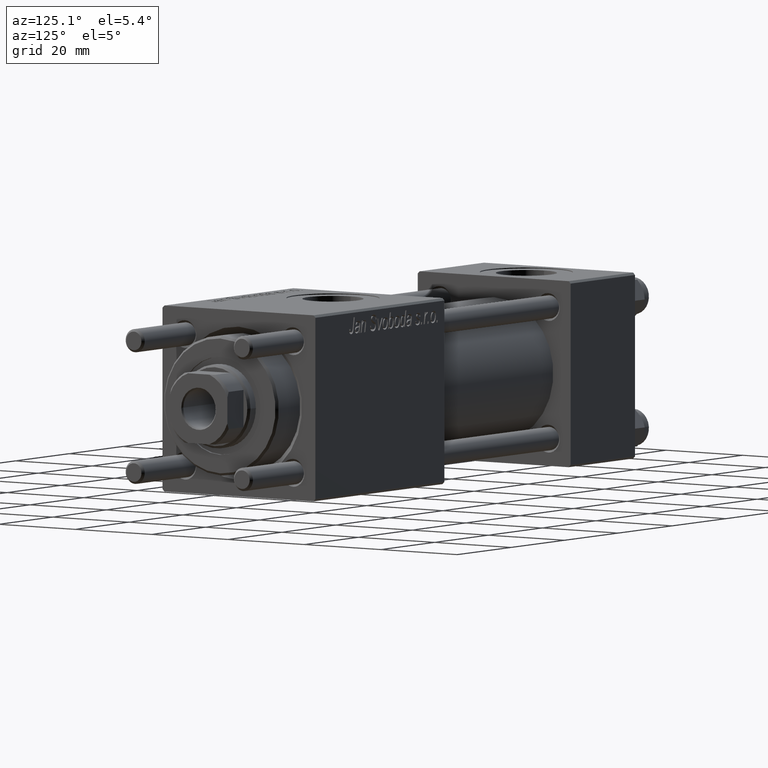
[diagram: clean part render]
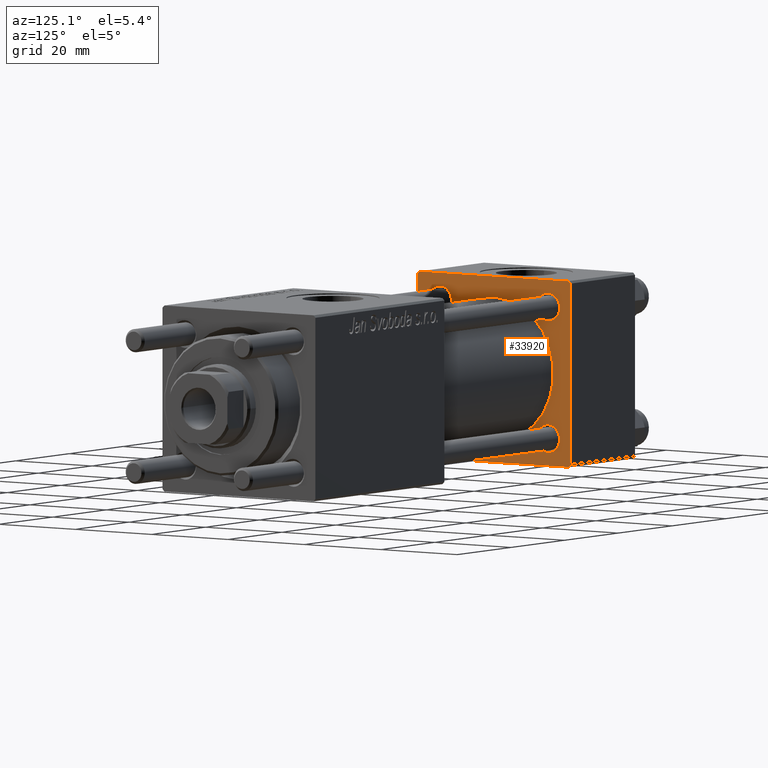
[diagram: same view with one face highlighted and labeled with its STEP entity id]
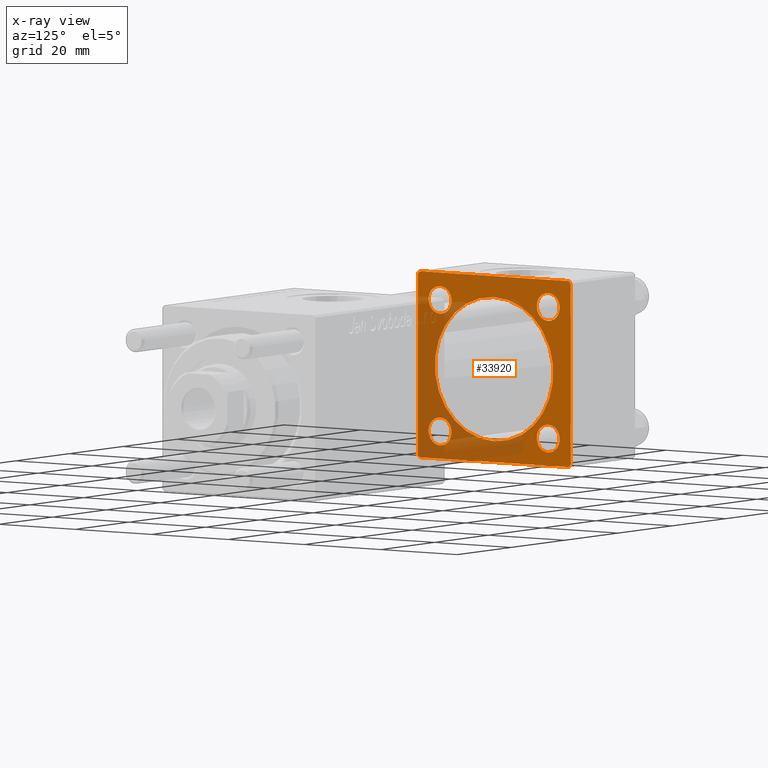
[diagram: x-ray of the same camera — body ghosted, the highlighted face saturated]
A machine part, auxiliary view. The second image highlights one B-rep face of the part: STEP entity #33920.
The next image is the same camera in x-ray: the body ghosted, the highlighted face saturated — about 40% of this face is hidden behind the body in this view.
In plain terms, the highlighted planar face has unit normal (-1, 0, 0).
Its self-contained STEP definition (entity closure, byte-faithful):
#233 = VERTEX_POINT ( 'NONE', #24056 ) ;
#1494 = CARTESIAN_POINT ( 'NONE',  ( 24.00000000000000000, -2.602085213965210642E-15, 15.50000000000000000 ) ) ;
#1534 = VERTEX_POINT ( 'NONE', #2154 ) ;
#2154 = CARTESIAN_POINT ( 'NONE',  ( 24.00000000000000000, -7.038826752868131828E-16, -15.50000000000000000 ) ) ;
#2370 = DIRECTION ( 'NONE',  ( -0.000000000000000000, -0.7071067811865500152, -0.7071067811865451302 ) ) ;
#2383 = CIRCLE ( 'NONE', #52716, 2.999999999999976463 ) ;
#2737 = CARTESIAN_POINT ( 'NONE',  ( 24.00000000000000000, 0.000000000000000000, 0.000000000000000000 ) ) ;
#2744 = EDGE_CURVE ( 'NONE', #19388, #51508, #25849, .T. ) ;
#3230 = DIRECTION ( 'NONE',  ( 0.000000000000000000, 0.000000000000000000, 1.000000000000000000 ) ) ;
#3379 = ORIENTED_EDGE ( 'NONE', *, *, #15808, .T. ) ;
#4532 = VERTEX_POINT ( 'NONE', #42231 ) ;
#4637 = EDGE_LOOP ( 'NONE', ( #36910, #37021 ) ) ;
#4899 = AXIS2_PLACEMENT_3D ( 'NONE', #2737, #15920, #6764 ) ;
#5357 = DIRECTION ( 'NONE',  ( 0.000000000000000000, 0.000000000000000000, -1.000000000000000000 ) ) ;
#5815 = EDGE_LOOP ( 'NONE', ( #31901, #3379 ) ) ;
#5979 = DIRECTION ( 'NONE',  ( 0.000000000000000000, 8.673617379884036705E-17, -1.000000000000000000 ) ) ;
#6232 = ORIENTED_EDGE ( 'NONE', *, *, #51312, .T. ) ;
#6656 = LINE ( 'NONE', #24146, #41642 ) ;
#6764 = DIRECTION ( 'NONE',  ( -0.000000000000000000, 0.000000000000000000, 1.000000000000000000 ) ) ;
#7007 = VECTOR ( 'NONE', #14086, 1000.000000000000000 ) ;
#7047 = FACE_BOUND ( 'NONE', #4637, .T. ) ;
#7319 = VERTEX_POINT ( 'NONE', #1494 ) ;
#7712 = EDGE_CURVE ( 'NONE', #37281, #233, #24611, .T. ) ;
#8043 = CARTESIAN_POINT ( 'NONE',  ( 24.00000000000000000, -2.602085213965210642E-15, 0.000000000000000000 ) ) ;
#8228 = ORIENTED_EDGE ( 'NONE', *, *, #30160, .T. ) ;
#8541 = LINE ( 'NONE', #51248, #18941 ) ;
#9007 = DIRECTION ( 'NONE',  ( -1.000000000000000000, -0.000000000000000000, -0.000000000000000000 ) ) ;
#9189 = VERTEX_POINT ( 'NONE', #27087 ) ;
#9199 = EDGE_CURVE ( 'NONE', #29111, #17846, #52618, .T. ) ;
#9414 = EDGE_CURVE ( 'NONE', #17846, #29111, #18726, .T. ) ;
#9806 = CARTESIAN_POINT ( 'NONE',  ( 24.00000000000000000, -14.14999999999999503, 14.15000000000000391 ) ) ;
#10552 = CARTESIAN_POINT ( 'NONE',  ( 24.00000000000000000, -20.00000000000000355, 19.99999999999998934 ) ) ;
#10929 = VERTEX_POINT ( 'NONE', #11508 ) ;
#11231 = EDGE_LOOP ( 'NONE', ( #8228, #13815 ) ) ;
#11277 = CARTESIAN_POINT ( 'NONE',  ( 24.00000000000000000, -19.49999999999999289, 19.99999999999998934 ) ) ;
#11508 = CARTESIAN_POINT ( 'NONE',  ( 24.00000000000000000, -14.14999999999999503, 17.15000000000000924 ) ) ;
#11946 = CARTESIAN_POINT ( 'NONE',  ( 24.00000000000000000, 20.00000000000000000, -19.50000000000002132 ) ) ;
#12466 = DIRECTION ( 'NONE',  ( -1.000000000000000000, -0.000000000000000000, -0.000000000000000000 ) ) ;
#12751 = DIRECTION ( 'NONE',  ( 0.000000000000000000, 0.000000000000000000, 1.000000000000000000 ) ) ;
#12823 = ORIENTED_EDGE ( 'NONE', *, *, #38695, .T. ) ;
#13508 = CARTESIAN_POINT ( 'NONE',  ( 24.00000000000000000, -14.14999999999999503, -14.15000000000000391 ) ) ;
#13609 = ORIENTED_EDGE ( 'NONE', *, *, #44180, .T. ) ;
#13815 = ORIENTED_EDGE ( 'NONE', *, *, #2744, .T. ) ;
#14059 = DIRECTION ( 'NONE',  ( -1.000000000000000000, -0.000000000000000000, -0.000000000000000000 ) ) ;
#14086 = DIRECTION ( 'NONE',  ( -0.000000000000000000, 0.7071067811865524577, 0.7071067811865426878 ) ) ;
#14196 = DIRECTION ( 'NONE',  ( 0.000000000000000000, 0.000000000000000000, 1.000000000000000000 ) ) ;
#15421 = LINE ( 'NONE', #10552, #32743 ) ;
#15762 = CARTESIAN_POINT ( 'NONE',  ( 24.00000000000000000, 14.14999999999999858, 11.15000000000002700 ) ) ;
#15808 = EDGE_CURVE ( 'NONE', #10929, #22939, #51746, .T. ) ;
#15920 = DIRECTION ( 'NONE',  ( -1.000000000000000000, 0.000000000000000000, -0.000000000000000000 ) ) ;
#16004 = DIRECTION ( 'NONE',  ( 0.000000000000000000, -1.000000000000000000, 1.734723475976807094E-16 ) ) ;
#16199 = FACE_BOUND ( 'NONE', #25839, .T. ) ;
#16241 = CARTESIAN_POINT ( 'NONE',  ( 24.00000000000000000, -14.14999999999999503, 14.15000000000000391 ) ) ;
#16519 = DIRECTION ( 'NONE',  ( 0.000000000000000000, 0.000000000000000000, 1.000000000000000000 ) ) ;
#16554 = DIRECTION ( 'NONE',  ( 0.000000000000000000, 0.7071067811865401342, -0.7071067811865549002 ) ) ;
#17176 = VERTEX_POINT ( 'NONE', #48382 ) ;
#17214 = DIRECTION ( 'NONE',  ( 0.000000000000000000, 0.000000000000000000, 1.000000000000000000 ) ) ;
#17377 = ORIENTED_EDGE ( 'NONE', *, *, #37993, .F. ) ;
#17846 = VERTEX_POINT ( 'NONE', #39473 ) ;
#18538 = VERTEX_POINT ( 'NONE', #11277 ) ;
#18726 = CIRCLE ( 'NONE', #40695, 3.000000000000004441 ) ;
#18749 = DIRECTION ( 'NONE',  ( 1.000000000000000000, 0.000000000000000000, 0.000000000000000000 ) ) ;
#18941 = VECTOR ( 'NONE', #16554, 1000.000000000000000 ) ;
#19382 = FACE_BOUND ( 'NONE', #27344, .T. ) ;
#19388 = VERTEX_POINT ( 'NONE', #35960 ) ;
#20765 = EDGE_CURVE ( 'NONE', #4532, #17176, #32684, .T. ) ;
#21025 = ORIENTED_EDGE ( 'NONE', *, *, #7712, .F. ) ;
#21223 = DIRECTION ( 'NONE',  ( 1.000000000000000000, 0.000000000000000000, 0.000000000000000000 ) ) ;
#21371 = AXIS2_PLACEMENT_3D ( 'NONE', #52032, #12466, #12751 ) ;
#22668 = DIRECTION ( 'NONE',  ( 0.000000000000000000, 0.000000000000000000, 1.000000000000000000 ) ) ;
#22874 = VERTEX_POINT ( 'NONE', #33112 ) ;
#22939 = VERTEX_POINT ( 'NONE', #27655 ) ;
#23984 = DIRECTION ( 'NONE',  ( 0.000000000000000000, -1.000000000000000000, -2.602085213965210149E-16 ) ) ;
#24056 = CARTESIAN_POINT ( 'NONE',  ( 24.00000000000000000, -19.50000000000000711, -20.00000000000000000 ) ) ;
#24146 = CARTESIAN_POINT ( 'NONE',  ( 24.00000000000000000, -20.00000000000000355, 19.49999999999998224 ) ) ;
#24251 = AXIS2_PLACEMENT_3D ( 'NONE', #9806, #31876, #45046 ) ;
#24529 = FACE_BOUND ( 'NONE', #11231, .T. ) ;
#24611 = LINE ( 'NONE', #55282, #31495 ) ;
#24716 = CARTESIAN_POINT ( 'NONE',  ( 24.00000000000000000, -14.14999999999999503, -11.15000000000000036 ) ) ;
#25003 = CARTESIAN_POINT ( 'NONE',  ( 24.00000000000000000, 14.14999999999999858, -14.15000000000000036 ) ) ;
#25355 = AXIS2_PLACEMENT_3D ( 'NONE', #35936, #18749, #53433 ) ;
#25839 = EDGE_LOOP ( 'NONE', ( #44203, #17377 ) ) ;
#25849 = CIRCLE ( 'NONE', #45075, 2.999999999999973355 ) ;
#26285 = LINE ( 'NONE', #40301, #53484 ) ;
#27087 = CARTESIAN_POINT ( 'NONE',  ( 24.00000000000000000, -20.00000000000000000, -19.49999999999999645 ) ) ;
#27192 = CIRCLE ( 'NONE', #25355, 15.50000000000000000 ) ;
#27344 = EDGE_LOOP ( 'NONE', ( #12823, #49200 ) ) ;
#27638 = DIRECTION ( 'NONE',  ( -1.000000000000000000, -0.000000000000000000, -0.000000000000000000 ) ) ;
#27655 = CARTESIAN_POINT ( 'NONE',  ( 24.00000000000000000, -14.14999999999999503, 11.15000000000000036 ) ) ;
#28935 = CARTESIAN_POINT ( 'NONE',  ( 24.00000000000000000, 19.50000000000000000, 20.00000000000000000 ) ) ;
#29111 = VERTEX_POINT ( 'NONE', #24716 ) ;
#29256 = ORIENTED_EDGE ( 'NONE', *, *, #40923, .F. ) ;
#29953 = DIRECTION ( 'NONE',  ( 0.000000000000000000, 0.000000000000000000, 1.000000000000000000 ) ) ;
#30160 = EDGE_CURVE ( 'NONE', #51508, #19388, #40475, .T. ) ;
#30693 = EDGE_LOOP ( 'NONE', ( #21025, #48642, #29256, #55826, #6232, #13609, #46696, #33925 ) ) ;
#31216 = VERTEX_POINT ( 'NONE', #35627 ) ;
#31433 = CIRCLE ( 'NONE', #21371, 2.999999999999976463 ) ;
#31495 = VECTOR ( 'NONE', #16004, 1000.000000000000000 ) ;
#31876 = DIRECTION ( 'NONE',  ( -1.000000000000000000, -0.000000000000000000, -0.000000000000000000 ) ) ;
#31901 = ORIENTED_EDGE ( 'NONE', *, *, #51884, .T. ) ;
#31909 = CARTESIAN_POINT ( 'NONE',  ( 24.00000000000000000, 14.14999999999999858, 14.15000000000000036 ) ) ;
#32210 = CARTESIAN_POINT ( 'NONE',  ( 24.00000000000000000, -20.00000000000000355, 19.49999999999998224 ) ) ;
#32684 = LINE ( 'NONE', #28935, #45404 ) ;
#32743 = VECTOR ( 'NONE', #5979, 1000.000000000000000 ) ;
#33112 = CARTESIAN_POINT ( 'NONE',  ( 24.00000000000000000, 14.14999999999999858, -11.15000000000002700 ) ) ;
#33920 = ADVANCED_FACE ( 'NONE', ( #7047, #19382, #46025, #24529, #16199, #45745 ), #54646, .F. ) ;
#33925 = ORIENTED_EDGE ( 'NONE', *, *, #50070, .T. ) ;
#35627 = CARTESIAN_POINT ( 'NONE',  ( 24.00000000000000000, 14.14999999999999858, -17.14999999999997726 ) ) ;
#35856 = CARTESIAN_POINT ( 'NONE',  ( 24.00000000000000000, 20.00000000000000000, -19.50000000000002132 ) ) ;
#35936 = CARTESIAN_POINT ( 'NONE',  ( 24.00000000000000000, -2.602085213965210642E-15, 0.000000000000000000 ) ) ;
#35960 = CARTESIAN_POINT ( 'NONE',  ( 24.00000000000000000, 14.14999999999999858, 17.14999999999997726 ) ) ;
#35969 = CARTESIAN_POINT ( 'NONE',  ( 24.00000000000000000, -14.14999999999999503, -14.15000000000000391 ) ) ;
#36001 = AXIS2_PLACEMENT_3D ( 'NONE', #8043, #21223, #17214 ) ;
#36910 = ORIENTED_EDGE ( 'NONE', *, *, #9414, .T. ) ;
#37021 = ORIENTED_EDGE ( 'NONE', *, *, #9199, .T. ) ;
#37260 = DIRECTION ( 'NONE',  ( 0.000000000000000000, -0.7071067811865425767, 0.7071067811865525687 ) ) ;
#37281 = VERTEX_POINT ( 'NONE', #48699 ) ;
#37530 = VERTEX_POINT ( 'NONE', #32210 ) ;
#37993 = EDGE_CURVE ( 'NONE', #1534, #7319, #40557, .T. ) ;
#38695 = EDGE_CURVE ( 'NONE', #31216, #22874, #31433, .T. ) ;
#39473 = CARTESIAN_POINT ( 'NONE',  ( 24.00000000000000000, -14.14999999999999503, -17.15000000000000924 ) ) ;
#40301 = CARTESIAN_POINT ( 'NONE',  ( 24.00000000000000000, 20.00000000000000000, 20.00000000000000000 ) ) ;
#40475 = CIRCLE ( 'NONE', #51434, 2.999999999999973355 ) ;
#40557 = CIRCLE ( 'NONE', #36001, 15.50000000000000000 ) ;
#40695 = AXIS2_PLACEMENT_3D ( 'NONE', #13508, #14059, #22668 ) ;
#40779 = VERTEX_POINT ( 'NONE', #11946 ) ;
#40923 = EDGE_CURVE ( 'NONE', #4532, #40779, #26285, .T. ) ;
#40944 = VECTOR ( 'NONE', #23984, 1000.000000000000000 ) ;
#40990 = CIRCLE ( 'NONE', #48326, 3.000000000000004441 ) ;
#41642 = VECTOR ( 'NONE', #2370, 1000.000000000000114 ) ;
#42231 = CARTESIAN_POINT ( 'NONE',  ( 24.00000000000000000, 20.00000000000000000, 19.49999999999999289 ) ) ;
#42481 = DIRECTION ( 'NONE',  ( -1.000000000000000000, -0.000000000000000000, -0.000000000000000000 ) ) ;
#44180 = EDGE_CURVE ( 'NONE', #18538, #37530, #6656, .T. ) ;
#44203 = ORIENTED_EDGE ( 'NONE', *, *, #55506, .F. ) ;
#45024 = LINE ( 'NONE', #35856, #7007 ) ;
#45046 = DIRECTION ( 'NONE',  ( 0.000000000000000000, 0.000000000000000000, 1.000000000000000000 ) ) ;
#45075 = AXIS2_PLACEMENT_3D ( 'NONE', #31909, #9007, #53130 ) ;
#45404 = VECTOR ( 'NONE', #37260, 999.9999999999998863 ) ;
#45745 = FACE_OUTER_BOUND ( 'NONE', #30693, .T. ) ;
#46025 = FACE_BOUND ( 'NONE', #5815, .T. ) ;
#46047 = CARTESIAN_POINT ( 'NONE',  ( 24.00000000000000000, 20.00000000000000000, 20.00000000000000000 ) ) ;
#46696 = ORIENTED_EDGE ( 'NONE', *, *, #52597, .T. ) ;
#47266 = EDGE_CURVE ( 'NONE', #22874, #31216, #2383, .T. ) ;
#48326 = AXIS2_PLACEMENT_3D ( 'NONE', #16241, #56097, #16519 ) ;
#48382 = CARTESIAN_POINT ( 'NONE',  ( 24.00000000000000000, 19.50000000000000000, 20.00000000000000000 ) ) ;
#48642 = ORIENTED_EDGE ( 'NONE', *, *, #48855, .T. ) ;
#48699 = CARTESIAN_POINT ( 'NONE',  ( 24.00000000000000000, 19.50000000000000711, -20.00000000000000711 ) ) ;
#48855 = EDGE_CURVE ( 'NONE', #37281, #40779, #45024, .T. ) ;
#49200 = ORIENTED_EDGE ( 'NONE', *, *, #47266, .T. ) ;
#49784 = LINE ( 'NONE', #46047, #40944 ) ;
#50070 = EDGE_CURVE ( 'NONE', #9189, #233, #8541, .T. ) ;
#51248 = CARTESIAN_POINT ( 'NONE',  ( 24.00000000000000000, -19.50000000000000711, -20.00000000000000000 ) ) ;
#51312 = EDGE_CURVE ( 'NONE', #17176, #18538, #49784, .T. ) ;
#51434 = AXIS2_PLACEMENT_3D ( 'NONE', #56339, #55752, #29953 ) ;
#51508 = VERTEX_POINT ( 'NONE', #15762 ) ;
#51713 = AXIS2_PLACEMENT_3D ( 'NONE', #35969, #27638, #14196 ) ;
#51746 = CIRCLE ( 'NONE', #24251, 3.000000000000004441 ) ;
#51884 = EDGE_CURVE ( 'NONE', #22939, #10929, #40990, .T. ) ;
#52032 = CARTESIAN_POINT ( 'NONE',  ( 24.00000000000000000, 14.14999999999999858, -14.15000000000000036 ) ) ;
#52597 = EDGE_CURVE ( 'NONE', #37530, #9189, #15421, .T. ) ;
#52618 = CIRCLE ( 'NONE', #51713, 3.000000000000004441 ) ;
#52716 = AXIS2_PLACEMENT_3D ( 'NONE', #25003, #42481, #3230 ) ;
#53130 = DIRECTION ( 'NONE',  ( 0.000000000000000000, 0.000000000000000000, 1.000000000000000000 ) ) ;
#53433 = DIRECTION ( 'NONE',  ( 0.000000000000000000, 0.000000000000000000, 1.000000000000000000 ) ) ;
#53484 = VECTOR ( 'NONE', #5357, 1000.000000000000000 ) ;
#54646 = PLANE ( 'NONE',  #4899 ) ;
#55282 = CARTESIAN_POINT ( 'NONE',  ( 24.00000000000000000, 20.00000000000000000, -20.00000000000000711 ) ) ;
#55506 = EDGE_CURVE ( 'NONE', #7319, #1534, #27192, .T. ) ;
#55752 = DIRECTION ( 'NONE',  ( -1.000000000000000000, -0.000000000000000000, -0.000000000000000000 ) ) ;
#55826 = ORIENTED_EDGE ( 'NONE', *, *, #20765, .T. ) ;
#56097 = DIRECTION ( 'NONE',  ( -1.000000000000000000, -0.000000000000000000, -0.000000000000000000 ) ) ;
#56339 = CARTESIAN_POINT ( 'NONE',  ( 24.00000000000000000, 14.14999999999999858, 14.15000000000000036 ) ) ;